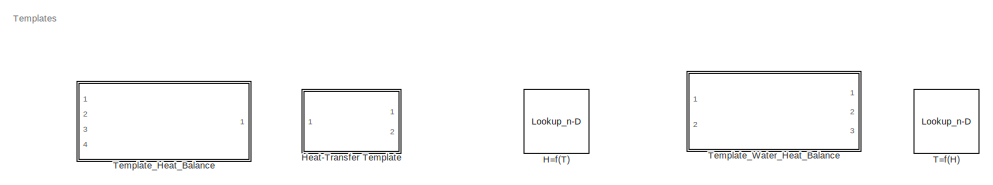
[diagram: root canvas - part 1/4, top right region]
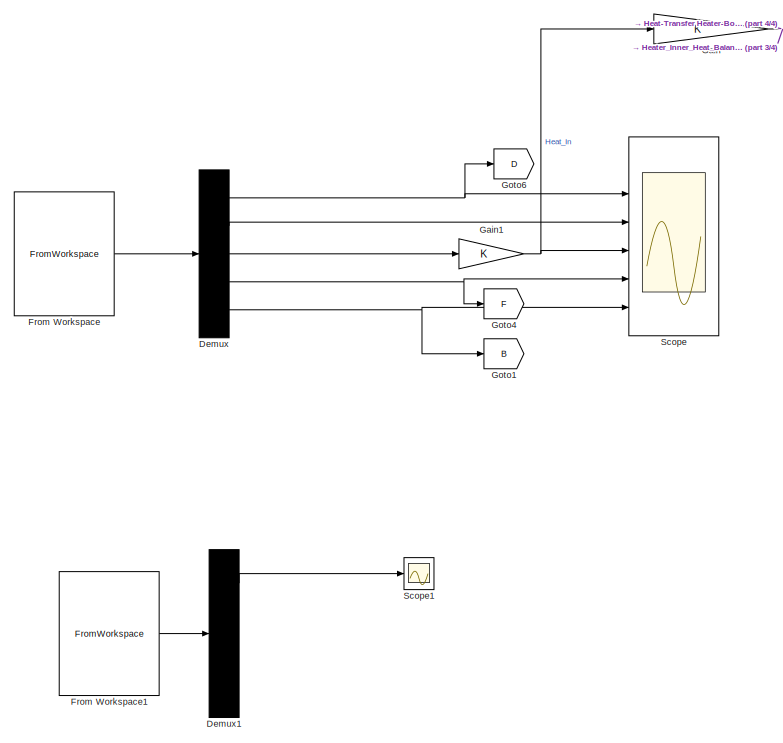
[diagram: root canvas - part 2/4, middle left region]
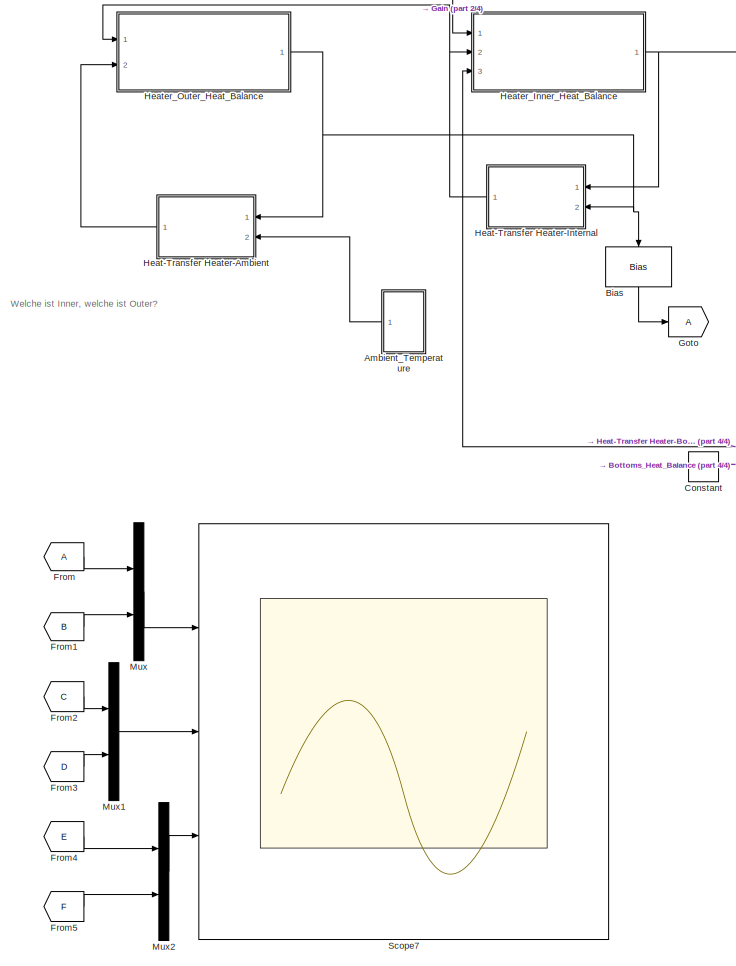
[diagram: root canvas - part 3/4, bottom center region]
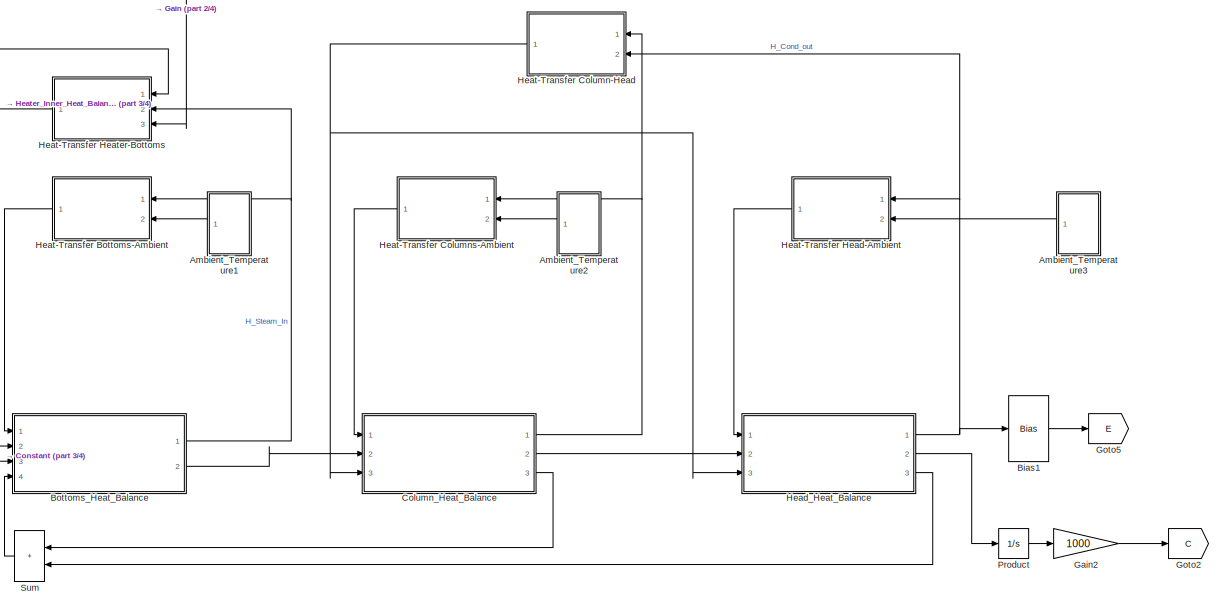
[diagram: root canvas - part 4/4, middle right region]
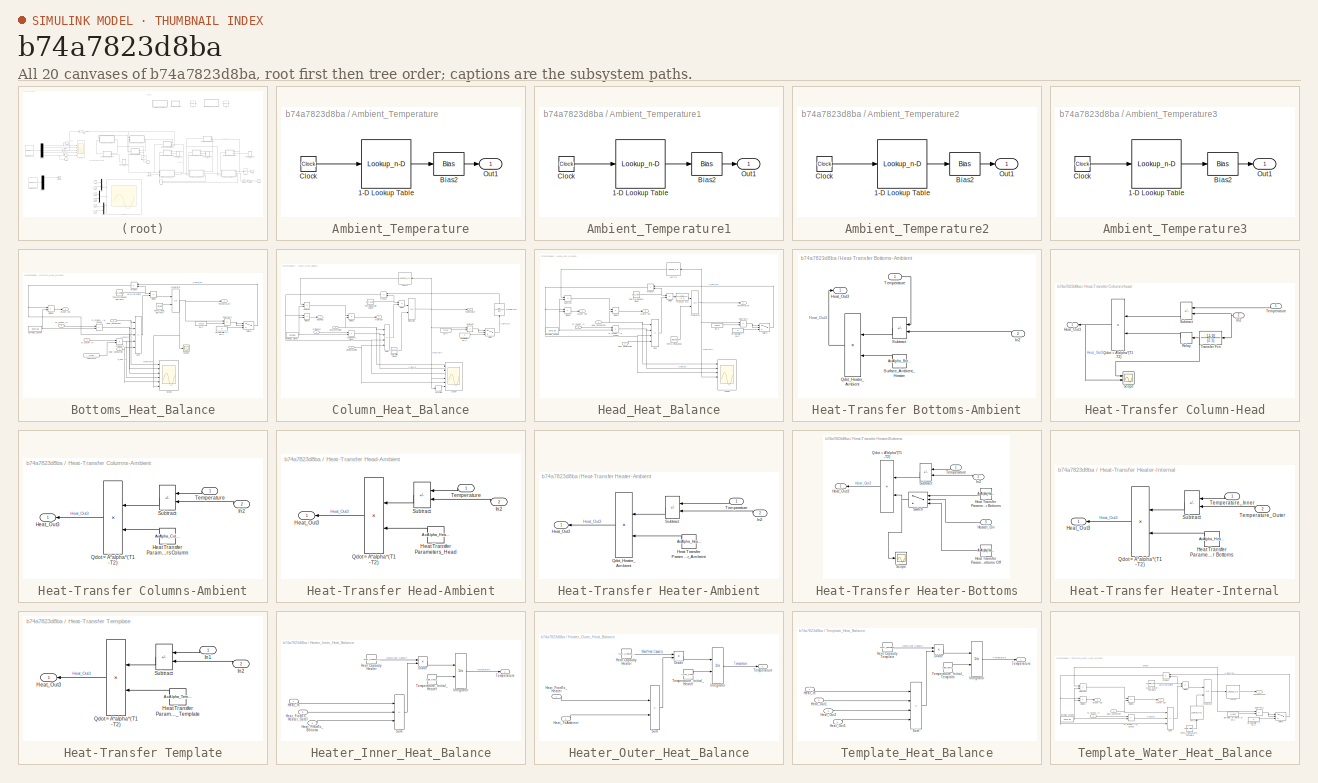
[diagram: thumbnail index - all 20 canvases of the model, root first then tree order]
MODEL slx_b74a7823d8ba
KIND model
CONFIG AbsTol = auto
CONFIG EnableMultiTasking = off
CONFIG FixedStep = 0.2
CONFIG InitFcn = %StartUp_VariableDeclaration;
CONFIG MaxStep = auto
CONFIG MinStep = auto
CONFIG RelTol = 1e-3
CONFIG SampleTimeConstraint = Unconstrained
CONFIG SolverName = FixedStepAuto
CONFIG StartTime = 0.0
CONFIG StopTime = 28600
BLOCK [SubSystem] Ambient_Temperature
  Ports = [0, 1]
  RequestExecContextInheritance = off
BLOCK [Lookup_n-D] Ambient_Temperature/1-D Lookup Table
  BreakpointsForDimension1 = [0,90*60,180*60,270*60,360*60]
  InputPortMap = u0
  InternalRulePriority = Speed
  NumberOfTableDimensions = 1
  Ports = [1, 1]
  RndMeth = Simplest
  Table = [21,23,23.5,24,24]
BLOCK [Bias] Ambient_Temperature/Bias2
  Bias = 273.15
  SaturateOnIntegerOverflow = off
BLOCK [Clock] Ambient_Temperature/Clock
BLOCK [Outport] Ambient_Temperature/Out1
BLOCK [SubSystem] Ambient_Temperature1
  Ports = [0, 1]
  RequestExecContextInheritance = off
BLOCK [Lookup_n-D] Ambient_Temperature1/1-D Lookup Table
  BreakpointsForDimension1 = [0,90*60,180*60,270*60,360*60]
  InputPortMap = u0
  InternalRulePriority = Speed
  NumberOfTableDimensions = 1
  Ports = [1, 1]
  RndMeth = Simplest
  Table = [21,23,23.5,24,24]
BLOCK [Bias] Ambient_Temperature1/Bias2
  Bias = 273.15
  SaturateOnIntegerOverflow = off
BLOCK [Clock] Ambient_Temperature1/Clock
BLOCK [Outport] Ambient_Temperature1/Out1
BLOCK [SubSystem] Ambient_Temperature2
  Ports = [0, 1]
  RequestExecContextInheritance = off
BLOCK [Lookup_n-D] Ambient_Temperature2/1-D Lookup Table
  BreakpointsForDimension1 = [0,90*60,180*60,270*60,360*60]
  InputPortMap = u0
  InternalRulePriority = Speed
  NumberOfTableDimensions = 1
  Ports = [1, 1]
  RndMeth = Simplest
  Table = [21,23,23.5,24,24]
BLOCK [Bias] Ambient_Temperature2/Bias2
  Bias = 273.15
  SaturateOnIntegerOverflow = off
BLOCK [Clock] Ambient_Temperature2/Clock
BLOCK [Outport] Ambient_Temperature2/Out1
BLOCK [SubSystem] Ambient_Temperature3
  Ports = [0, 1]
  RequestExecContextInheritance = off
BLOCK [Lookup_n-D] Ambient_Temperature3/1-D Lookup Table
  BreakpointsForDimension1 = [0,90*60,180*60,270*60,360*60]
  InputPortMap = u0
  InternalRulePriority = Speed
  NumberOfTableDimensions = 1
  Ports = [1, 1]
  RndMeth = Simplest
  Table = [21,23,23.5,24,24]
BLOCK [Bias] Ambient_Temperature3/Bias2
  Bias = 273.15
  SaturateOnIntegerOverflow = off
BLOCK [Clock] Ambient_Temperature3/Clock
BLOCK [Outport] Ambient_Temperature3/Out1
BLOCK [Bias] Bias
  Bias = -273.15
  NameLocation = left
  SaturateOnIntegerOverflow = off
BLOCK [Bias] Bias1
  Bias = -273.15
  SaturateOnIntegerOverflow = off
BLOCK [SubSystem] Bottoms_Heat_Balance
  Ports = [4, 2]
  RequestExecContextInheritance = off
BLOCK [Constant] Bottoms_Heat_Balance/ 99°C
  Value = 372.15
BLOCK [Constant] Bottoms_Heat_Balance/Constant2
  Value = 414.95
BLOCK [Product] Bottoms_Heat_Balance/Divide
  Inputs = /*
  Ports = [2, 1]
BLOCK [Product] Bottoms_Heat_Balance/Divide2
  Inputs = */
  Ports = [2, 1]
BLOCK [Constant] Bottoms_Heat_Balance/Enthalpy_Steam
  Value = 2675.58
BLOCK [Inport] Bottoms_Heat_Balance/Heat Conduction
  Port = 2
BLOCK [Inport] Bottoms_Heat_Balance/Heat_Convection
BLOCK [Integrator] Bottoms_Heat_Balance/Integrator
  InitialConditionSource = external
  Ports = [2, 1]
  UpperSaturationLimit = 100
BLOCK [Constant] Bottoms_Heat_Balance/No Boil while T < 99°C
  Value = 0
BLOCK [Product] Bottoms_Heat_Balance/Product
  Ports = [2, 1]
BLOCK [Product] Bottoms_Heat_Balance/Product2
  Ports = [2, 1]
BLOCK [Scope] Bottoms_Heat_Balance/Scope
  Floating = off
  NumInputPorts = 6
  Ports = [6]
  ScopeSpecificationString = Simulink.scopes.TimeScopeBlockCfg('CurrentConfiguration', extmgr.ConfigurationSet(extmgr.Configuration('Core','General UI',true),extmgr.Configuration('Core','Source UI',true),extmgr.Configuration('Sources','WiredSimulink',true,'DataLoggingVariableName','ScopeData3'),extmgr.Configuration('Visuals','Time Domain',true,'SerializedDisplays',{struct('MinYLimReal','-0.00881','MaxYLimReal','0.07771','YLab...<+4821ch>
BLOCK [Scope] Bottoms_Heat_Balance/Scope1
  Floating = off
  NumInputPorts = 1
  Ports = [1]
  ScopeSpecificationString = Simulink.scopes.TimeScopeBlockCfg('CurrentConfiguration', extmgr.ConfigurationSet(extmgr.Configuration('Core','General UI',true),extmgr.Configuration('Core','Source UI',true),extmgr.Configuration('Sources','WiredSimulink',true,'DataLoggingVariableName','ScopeData2'),extmgr.Configuration('Visuals','Time Domain',true,'SerializedDisplays',{struct('MinYLimReal','294.43282','MaxYLimReal','380.86496','Y...<+1418ch>
BLOCK [Outport] Bottoms_Heat_Balance/Steam Out
  Port = 2
BLOCK [Sum] Bottoms_Heat_Balance/Subtract1
  IconShape = rectangular
  Inputs = +-
  Ports = [2, 1]
BLOCK [Sum] Bottoms_Heat_Balance/Sum
  IconShape = rectangular
  Inputs = -+-++
  Ports = [5, 1]
BLOCK [Switch] Bottoms_Heat_Balance/Switch
  Criteria = u2 > Threshold
  InputSameDT = off
  SaturateOnIntegerOverflow = off
BLOCK [Constant] Bottoms_Heat_Balance/Temp_Initial_Bottoms
  Value = T_init_Bottoms
BLOCK [Outport] Bottoms_Heat_Balance/Temperature
BLOCK [Constant] Bottoms_Heat_Balance/Thermal Capacity Bottoms
  Value = MxC_Bottoms
BLOCK [Product] Bottoms_Heat_Balance/m_Steam * H_Steam
  NameLocation = top
  Ports = [2, 1]
BLOCK [Inport] Bottoms_Heat_Balance/m_Steam_In
  NameLocation = top
  Port = 3
BLOCK [Inport] Bottoms_Heat_Balance/m_Water In
  Port = 4
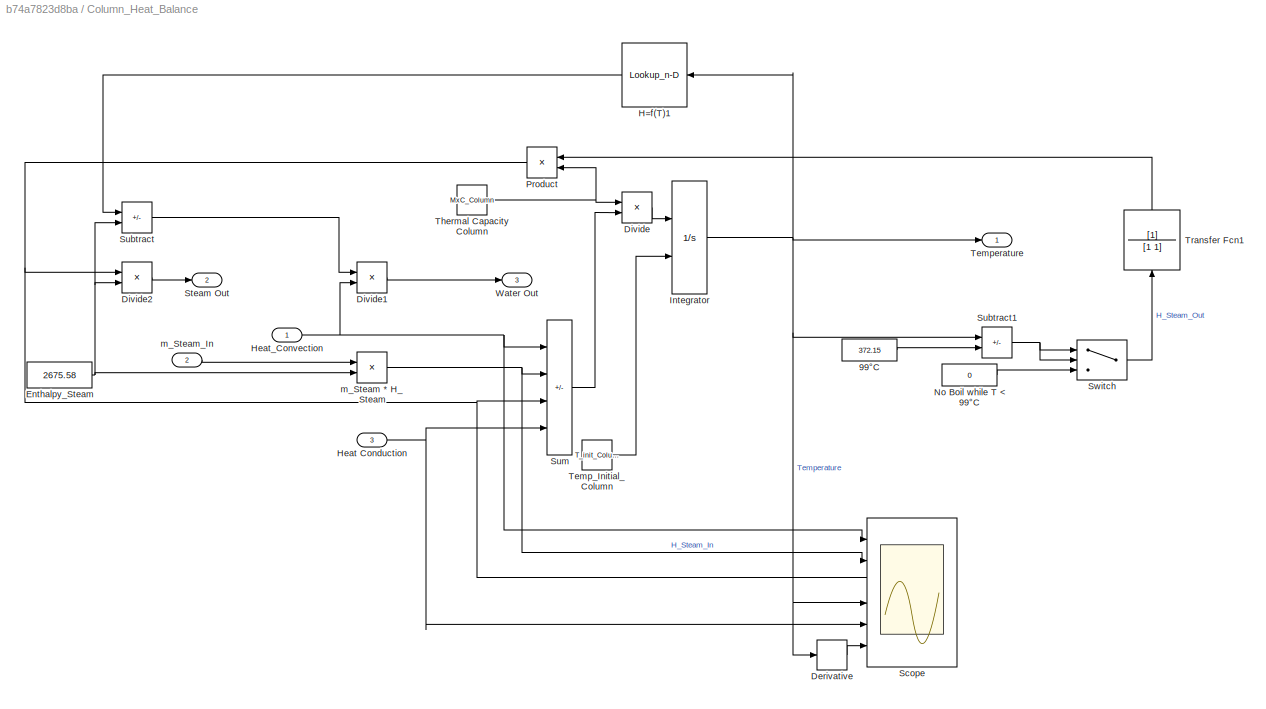
BLOCK [SubSystem] Column_Heat_Balance
  Ports = [3, 3]
  RequestExecContextInheritance = off
BLOCK [Constant] Column_Heat_Balance/ 99°C
  Value = 372.15
BLOCK [Derivative] Column_Heat_Balance/Derivative
BLOCK [Product] Column_Heat_Balance/Divide
  Inputs = /*
  Ports = [2, 1]
BLOCK [Product] Column_Heat_Balance/Divide1
  Inputs = /*
  Ports = [2, 1]
BLOCK [Product] Column_Heat_Balance/Divide2
  Inputs = */
  Ports = [2, 1]
BLOCK [Constant] Column_Heat_Balance/Enthalpy_Steam
  Value = 2675.58
BLOCK [Lookup_n-D] Column_Heat_Balance/H=f(T)1
  BreakpointsForDimension1 = [273.16, 372.15, 373.15, 446.15\n]
  InputPortMap = u0
  InternalRulePriority = Speed
  NameLocation = top
  NumberOfTableDimensions = 1
  Ports = [1, 1]
  RndMeth = Simplest
  Table = [0.10319804238124, 414.95098616583, 2675.58417423615, 2822.05078480503]
BLOCK [Inport] Column_Heat_Balance/Heat Conduction
  Port = 3
BLOCK [Inport] Column_Heat_Balance/Heat_Convection
BLOCK [Integrator] Column_Heat_Balance/Integrator
  InitialConditionSource = external
  Ports = [2, 1]
  UpperSaturationLimit = 100
BLOCK [Constant] Column_Heat_Balance/No Boil while T < 99°C
  Value = 0
BLOCK [Product] Column_Heat_Balance/Product
  Ports = [2, 1]
BLOCK [Scope] Column_Heat_Balance/Scope
  Floating = off
  NumInputPorts = 6
  Ports = [6]
  ScopeSpecificationString = Simulink.scopes.TimeScopeBlockCfg('CurrentConfiguration', extmgr.ConfigurationSet(extmgr.Configuration('Core','General UI',true),extmgr.Configuration('Core','Source UI',true),extmgr.Configuration('Sources','WiredSimulink',true,'DataLoggingVariableName','ScopeData4'),extmgr.Configuration('Visuals','Time Domain',true,'SerializedDisplays',{struct('MinYLimReal','-0.00000001','MaxYLimReal','0.00000012'...<+4825ch>
BLOCK [Outport] Column_Heat_Balance/Steam Out
  Port = 2
BLOCK [Sum] Column_Heat_Balance/Subtract
  IconShape = rectangular
  Inputs = -+
  Ports = [2, 1]
BLOCK [Sum] Column_Heat_Balance/Subtract1
  IconShape = rectangular
  Inputs = +-
  Ports = [2, 1]
BLOCK [Sum] Column_Heat_Balance/Sum
  IconShape = rectangular
  Inputs = -+--
  Ports = [4, 1]
BLOCK [Switch] Column_Heat_Balance/Switch
  Criteria = u2 > Threshold
  InputSameDT = off
  SaturateOnIntegerOverflow = off
BLOCK [Constant] Column_Heat_Balance/Temp_Initial_Column
  Value = T_init_Column
BLOCK [Outport] Column_Heat_Balance/Temperature
BLOCK [Constant] Column_Heat_Balance/Thermal Capacity Column
  Value = MxC_Column
BLOCK [TransferFcn] Column_Heat_Balance/Transfer Fcn1
  Denominator = [1 1]
  NameLocation = right
BLOCK [Outport] Column_Heat_Balance/Water Out
  Port = 3
BLOCK [Product] Column_Heat_Balance/m_Steam * H_Steam
  Ports = [2, 1]
BLOCK [Inport] Column_Heat_Balance/m_Steam_In
  NameLocation = top
  Port = 2
BLOCK [Constant] Constant
  NameLocation = top
  Value = 0
BLOCK [Demux] Demux
  Outputs = 5
  Ports = [1, 5]
BLOCK [Demux] Demux1
  Ports = [1, 4]
BLOCK [From] From
BLOCK [FromWorkspace] From Workspace
  VariableName = SimInput
BLOCK [FromWorkspace] From Workspace1
  Interpolate = off
  OutputAfterFinalValue = Holding final value
  VariableName = SimInputOpt
BLOCK [From] From1
  GotoTag = B
BLOCK [From] From2
  GotoTag = C
BLOCK [From] From3
  GotoTag = D
BLOCK [From] From4
  GotoTag = E
BLOCK [From] From5
  GotoTag = F
BLOCK [Gain] Gain
BLOCK [Gain] Gain1
BLOCK [Gain] Gain2
  Gain = 1000
BLOCK [Goto] Goto
BLOCK [Goto] Goto1
  GotoTag = B
BLOCK [Goto] Goto2
  GotoTag = C
BLOCK [Goto] Goto4
  GotoTag = F
BLOCK [Goto] Goto5
  GotoTag = E
BLOCK [Goto] Goto6
  GotoTag = D
BLOCK [Lookup_n-D] H=f(T)
  BreakpointsForDimension1 = [273.16, 372.15, 373.15, 446.15\n]
  Commented = on
  InputPortMap = u0
  InternalRulePriority = Speed
  NumberOfTableDimensions = 1
  Ports = [1, 1]
  RndMeth = Simplest
  Table = [0.10319804238124, 414.95098616583, 2675.58417423615, 2822.05078480503]
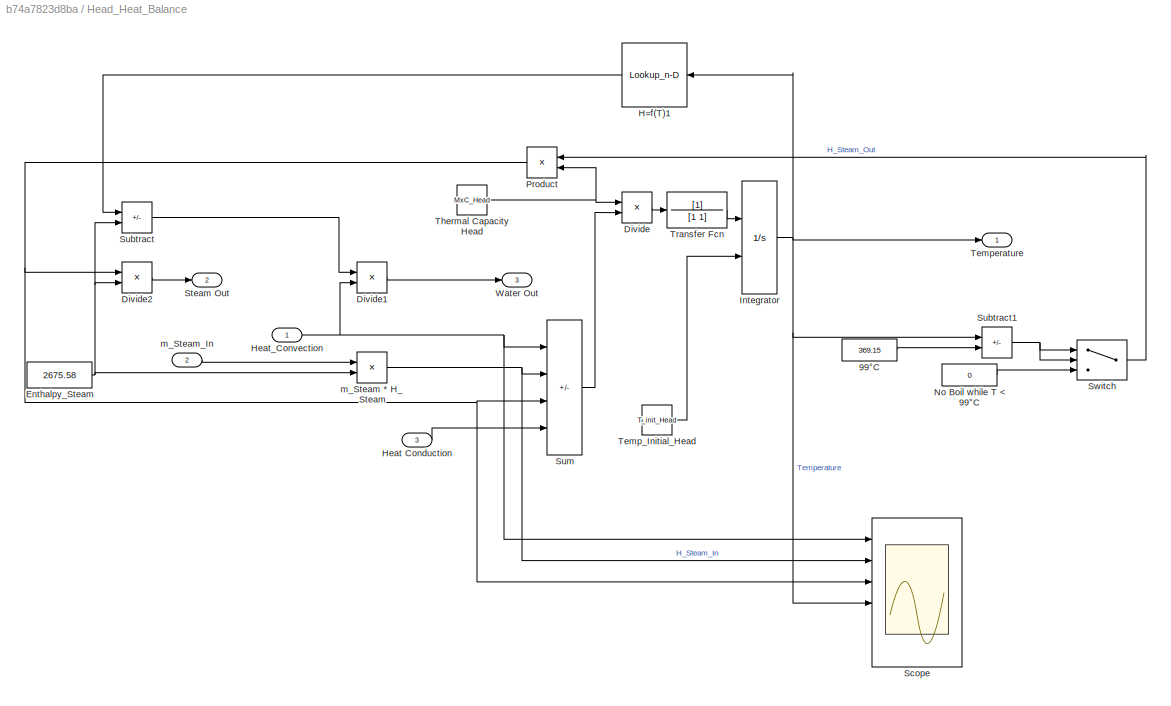
BLOCK [SubSystem] Head_Heat_Balance
  Ports = [3, 3]
  RequestExecContextInheritance = off
BLOCK [Constant] Head_Heat_Balance/ 99°C
  Value = 369.15
BLOCK [Product] Head_Heat_Balance/Divide
  Inputs = /*
  Ports = [2, 1]
BLOCK [Product] Head_Heat_Balance/Divide1
  Inputs = /*
  Ports = [2, 1]
BLOCK [Product] Head_Heat_Balance/Divide2
  Inputs = */
  Ports = [2, 1]
BLOCK [Constant] Head_Heat_Balance/Enthalpy_Steam
  Value = 2675.58
BLOCK [Lookup_n-D] Head_Heat_Balance/H=f(T)1
  BreakpointsForDimension1 = [273.16, 372.15, 373.15, 446.15\n]
  InputPortMap = u0
  InternalRulePriority = Speed
  NameLocation = top
  NumberOfTableDimensions = 1
  Ports = [1, 1]
  RndMeth = Simplest
  Table = [0.10319804238124, 414.95098616583, 2675.58417423615, 2822.05078480503]
BLOCK [Inport] Head_Heat_Balance/Heat Conduction
  Port = 3
BLOCK [Inport] Head_Heat_Balance/Heat_Convection
BLOCK [Integrator] Head_Heat_Balance/Integrator
  InitialConditionSource = external
  Ports = [2, 1]
  UpperSaturationLimit = 100
BLOCK [Constant] Head_Heat_Balance/No Boil while T < 99°C
  Value = 0
BLOCK [Product] Head_Heat_Balance/Product
  Ports = [2, 1]
BLOCK [Scope] Head_Heat_Balance/Scope
  Floating = off
  NumInputPorts = 6
  Ports = [6]
  ScopeSpecificationString = Simulink.scopes.TimeScopeBlockCfg('CurrentConfiguration', extmgr.ConfigurationSet(extmgr.Configuration('Core','General UI',true),extmgr.Configuration('Core','Source UI',true),extmgr.Configuration('Sources','WiredSimulink',true,'DataLoggingVariableName','ScopeData4'),extmgr.Configuration('Visuals','Time Domain',true,'SerializedDisplays',{struct('MinYLimReal','-0.03039','MaxYLimReal','0.27745','YLab...<+4817ch>
BLOCK [Outport] Head_Heat_Balance/Steam Out
  Port = 2
BLOCK [Sum] Head_Heat_Balance/Subtract
  IconShape = rectangular
  Inputs = -+
  Ports = [2, 1]
BLOCK [Sum] Head_Heat_Balance/Subtract1
  IconShape = rectangular
  Inputs = +-
  Ports = [2, 1]
BLOCK [Sum] Head_Heat_Balance/Sum
  IconShape = rectangular
  Inputs = -+-+
  Ports = [4, 1]
BLOCK [Switch] Head_Heat_Balance/Switch
  Criteria = u2 > Threshold
  InputSameDT = off
  SaturateOnIntegerOverflow = off
BLOCK [Constant] Head_Heat_Balance/Temp_Initial_Head
  Value = T_init_Head
BLOCK [Outport] Head_Heat_Balance/Temperature
BLOCK [Constant] Head_Heat_Balance/Thermal Capacity Head
  Value = MxC_Head
BLOCK [TransferFcn] Head_Heat_Balance/Transfer Fcn
  Denominator = [1 1]
BLOCK [Outport] Head_Heat_Balance/Water Out
  Port = 3
BLOCK [Product] Head_Heat_Balance/m_Steam * H_Steam
  Ports = [2, 1]
BLOCK [Inport] Head_Heat_Balance/m_Steam_In
  NameLocation = top
  Port = 2
BLOCK [SubSystem] Heat-Transfer Bottoms-Ambient
  Ports = [2, 1]
  RequestExecContextInheritance = off
BLOCK [Outport] Heat-Transfer Bottoms-Ambient/Heat_Out3
BLOCK [Inport] Heat-Transfer Bottoms-Ambient/In2
  Port = 2
BLOCK [Product] Heat-Transfer Bottoms-Ambient/Qdot_Heater_Ambient
  Ports = [2, 1]
BLOCK [Sum] Heat-Transfer Bottoms-Ambient/Subtract
  IconShape = rectangular
  Inputs = +-
  NameLocation = top
  Ports = [2, 1]
BLOCK [Constant] Heat-Transfer Bottoms-Ambient/Surface_Ambient_Heater
  Value = AxAlpha_Bottoms_Ambient
BLOCK [Inport] Heat-Transfer Bottoms-Ambient/Temperature
BLOCK [SubSystem] Heat-Transfer Column-Head
  Ports = [2, 1]
  RequestExecContextInheritance = off
BLOCK [Outport] Heat-Transfer Column-Head/Heat_Out3
BLOCK [Inport] Heat-Transfer Column-Head/In2
  Port = 2
BLOCK [Product] Heat-Transfer Column-Head/Qdot = A*alpha*(T1-T2)
  NameLocation = top
  Ports = [2, 1]
BLOCK [Relay] Heat-Transfer Column-Head/Relay
  OffSwitchValue = -0.005
  OnOutputValue = AxAlpha_Column_Head
  OnSwitchValue = 0.03
BLOCK [Scope] Heat-Transfer Column-Head/Scope
  Floating = off
  NumInputPorts = 2
  Ports = [2]
  ScopeSpecificationString = Simulink.scopes.TimeScopeBlockCfg('CurrentConfiguration', extmgr.ConfigurationSet(extmgr.Configuration('Core','General UI',true),extmgr.Configuration('Core','Source UI',true),extmgr.Configuration('Sources','WiredSimulink',true,'DataLoggingVariableName','ScopeData1'),extmgr.Configuration('Visuals','Time Domain',true,'SerializedDisplays',{struct('MinYLimReal','-0.27968','MaxYLimReal','0.18048','YLab...<+1439ch>
BLOCK [Sum] Heat-Transfer Column-Head/Subtract
  IconShape = rectangular
  Inputs = +-
  NameLocation = top
  Ports = [2, 1]
BLOCK [Inport] Heat-Transfer Column-Head/Temperature
BLOCK [TransferFcn] Heat-Transfer Column-Head/Transfer Fcn
  Denominator = [2 1]
  Numerator = [-1 0]
BLOCK [SubSystem] Heat-Transfer Columns-Ambient
  Ports = [2, 1]
  RequestExecContextInheritance = off
BLOCK [Constant] Heat-Transfer Columns-Ambient/Heat Transfer Parameters Column
  Value = AxAlpha_Column_Ambient
BLOCK [Outport] Heat-Transfer Columns-Ambient/Heat_Out3
BLOCK [Inport] Heat-Transfer Columns-Ambient/In2
  Port = 2
BLOCK [Product] Heat-Transfer Columns-Ambient/Qdot = A*alpha*(T1-T2)
  NameLocation = top
  Ports = [2, 1]
BLOCK [Sum] Heat-Transfer Columns-Ambient/Subtract
  IconShape = rectangular
  Inputs = +-
  NameLocation = top
  Ports = [2, 1]
BLOCK [Inport] Heat-Transfer Columns-Ambient/Temperature
BLOCK [SubSystem] Heat-Transfer Head-Ambient
  Ports = [2, 1]
  RequestExecContextInheritance = off
BLOCK [Constant] Heat-Transfer Head-Ambient/Heat Transfer Parameters_Head
  Value = AxAlpha_Head_Ambient
BLOCK [Outport] Heat-Transfer Head-Ambient/Heat_Out3
BLOCK [Inport] Heat-Transfer Head-Ambient/In2
  Port = 2
BLOCK [Product] Heat-Transfer Head-Ambient/Qdot = A*alpha*(T1-T2)
  NameLocation = top
  Ports = [2, 1]
BLOCK [Sum] Heat-Transfer Head-Ambient/Subtract
  IconShape = rectangular
  Inputs = +-
  NameLocation = top
  Ports = [2, 1]
BLOCK [Inport] Heat-Transfer Head-Ambient/Temperature
BLOCK [SubSystem] Heat-Transfer Heater-Ambient
  Ports = [2, 1]
  RequestExecContextInheritance = off
BLOCK [Constant] Heat-Transfer Heater-Ambient/Heat Transfer Parameters Heater_Ambeint
  Value = AxAlpha_Heater_Ambient
BLOCK [Outport] Heat-Transfer Heater-Ambient/Heat_Out3
BLOCK [Inport] Heat-Transfer Heater-Ambient/In2
  Port = 2
BLOCK [Product] Heat-Transfer Heater-Ambient/Qdot_Heater_Ambient
  Ports = [2, 1]
BLOCK [Sum] Heat-Transfer Heater-Ambient/Subtract
  IconShape = rectangular
  Inputs = +-
  NameLocation = top
  Ports = [2, 1]
BLOCK [Inport] Heat-Transfer Heater-Ambient/Temperature
BLOCK [SubSystem] Heat-Transfer Heater-Bottoms
  Ports = [3, 1]
  RequestExecContextInheritance = off
BLOCK [Constant] Heat-Transfer Heater-Bottoms/Heat Transfer Parameters Heater Bottoms
  Value = AxAlpha_Heater_Bottoms_On
BLOCK [Constant] Heat-Transfer Heater-Bottoms/Heat Transfer Parameters Heater Bottoms Off
  Value = AxAlpha_Heater_Bottoms_Off
BLOCK [Outport] Heat-Transfer Heater-Bottoms/Heat_Out3
BLOCK [Inport] Heat-Transfer Heater-Bottoms/Heater_On
  Port = 3
BLOCK [Inport] Heat-Transfer Heater-Bottoms/In2
  Port = 2
BLOCK [Product] Heat-Transfer Heater-Bottoms/Qdot = A*alpha*(T1-T2)
  NameLocation = top
  Ports = [2, 1]
BLOCK [Scope] Heat-Transfer Heater-Bottoms/Scope
  Floating = off
  NumInputPorts = 1
  Ports = [1]
  ScopeSpecificationString = Simulink.scopes.TimeScopeBlockCfg('CurrentConfiguration', extmgr.ConfigurationSet(extmgr.Configuration('Core','General UI',true),extmgr.Configuration('Core','Source UI',true),extmgr.Configuration('Sources','WiredSimulink',true,'DataLoggingVariableName','ScopeData1'),extmgr.Configuration('Visuals','Time Domain',true,'SerializedDisplays',{struct('MinYLimReal','0.00083','MaxYLimReal','0.00252','YLabe...<+1429ch>
BLOCK [Sum] Heat-Transfer Heater-Bottoms/Subtract
  IconShape = rectangular
  Inputs = +-
  NameLocation = top
  Ports = [2, 1]
BLOCK [Switch] Heat-Transfer Heater-Bottoms/Switch
  Criteria = u2 > Threshold
  InputSameDT = off
  SaturateOnIntegerOverflow = off
BLOCK [Inport] Heat-Transfer Heater-Bottoms/Temperature
BLOCK [SubSystem] Heat-Transfer Heater-Internal
  Ports = [2, 1]
  RequestExecContextInheritance = off
BLOCK [Constant] Heat-Transfer Heater-Internal/Heat Transfer Parameters Heater Bottoms
  Value = AxAlpha_Heater_Inner_Outer
BLOCK [Outport] Heat-Transfer Heater-Internal/Heat_Out3
BLOCK [Product] Heat-Transfer Heater-Internal/Qdot = A*alpha*(T1-T2)
  NameLocation = top
  Ports = [2, 1]
BLOCK [Sum] Heat-Transfer Heater-Internal/Subtract
  IconShape = rectangular
  Inputs = +-
  NameLocation = top
  Ports = [2, 1]
BLOCK [Inport] Heat-Transfer Heater-Internal/Temperature_Inner
BLOCK [Inport] Heat-Transfer Heater-Internal/Temperature_Outer
  Port = 2
BLOCK [SubSystem] Heat-Transfer Template
  Commented = on
  Ports = [2, 1]
  RequestExecContextInheritance = off
BLOCK [Constant] Heat-Transfer Template/Heat Transfer Parameters_Template
  Value = AxAlpha_Template
BLOCK [Outport] Heat-Transfer Template/Heat_Out3
BLOCK [Inport] Heat-Transfer Template/In1
BLOCK [Inport] Heat-Transfer Template/In2
  Port = 2
BLOCK [Product] Heat-Transfer Template/Qdot = A*alpha*(T1-T2)
  NameLocation = top
  Ports = [2, 1]
BLOCK [Sum] Heat-Transfer Template/Subtract
  IconShape = rectangular
  Inputs = +-
  NameLocation = top
  Ports = [2, 1]
BLOCK [SubSystem] Heater_Inner_Heat_Balance
  Ports = [3, 1]
  RequestExecContextInheritance = off
BLOCK [Product] Heater_Inner_Heat_Balance/Divide
  Inputs = /*
  Ports = [2, 1]
BLOCK [Constant] Heater_Inner_Heat_Balance/Heat Capacity Heater
  Value = MxC_Heater_Inner
BLOCK [Inport] Heater_Inner_Heat_Balance/Heat_FromTo_Bottoms
  Port = 3
BLOCK [Inport] Heater_Inner_Heat_Balance/Heat_FromTo_Heater_Outer
  Port = 2
BLOCK [Inport] Heater_Inner_Heat_Balance/Heat_In
BLOCK [Integrator] Heater_Inner_Heat_Balance/Integrator
  InitialConditionSource = external
  Ports = [2, 1]
BLOCK [Sum] Heater_Inner_Heat_Balance/Sum
  IconShape = rectangular
  Inputs = +--
  Ports = [3, 1]
BLOCK [Outport] Heater_Inner_Heat_Balance/Temperature
BLOCK [Constant] Heater_Inner_Heat_Balance/Temperature_Initial_Heater
  Value = T_init_Heater
BLOCK [SubSystem] Heater_Outer_Heat_Balance
  Ports = [2, 1]
  RequestExecContextInheritance = off
BLOCK [Product] Heater_Outer_Heat_Balance/Divide
  Inputs = /*
  Ports = [2, 1]
BLOCK [Constant] Heater_Outer_Heat_Balance/Heat Capacity Heater
  Value = MxC_Heater_Outer
BLOCK [Inport] Heater_Outer_Heat_Balance/Heat_FromTo_Heater
BLOCK [Inport] Heater_Outer_Heat_Balance/Heat_ToAmbient
  Port = 2
BLOCK [Integrator] Heater_Outer_Heat_Balance/Integrator
  InitialConditionSource = external
  Ports = [2, 1]
BLOCK [Sum] Heater_Outer_Heat_Balance/Sum
  IconShape = rectangular
  Inputs = +-
  Ports = [2, 1]
BLOCK [Outport] Heater_Outer_Heat_Balance/Temperature
BLOCK [Constant] Heater_Outer_Heat_Balance/Temperature_Initial_Heater
  Value = T_init_Heater
BLOCK [Mux] Mux
  DisplayOption = bar
  Inputs = 2
  Ports = [2, 1]
BLOCK [Mux] Mux1
  DisplayOption = bar
  Inputs = 2
  Ports = [2, 1]
BLOCK [Mux] Mux2
  DisplayOption = bar
  Inputs = 2
  Ports = [2, 1]
BLOCK [Integrator] Product
  Ports = [1, 1]
BLOCK [Scope] Scope
  Floating = off
  NumInputPorts = 6
  Ports = [6]
  ScopeSpecificationString = Simulink.scopes.TimeScopeBlockCfg('CurrentConfiguration', extmgr.ConfigurationSet(extmgr.Configuration('Core','General UI',true),extmgr.Configuration('Core','Source UI',true),extmgr.Configuration('Sources','WiredSimulink',true,'DataLoggingVariableName','ScopeData1'),extmgr.Configuration('Visuals','Time Domain',true,'SerializedDisplays',{struct('MinYLimReal','-0.05345','MaxYLimReal','0.48104','YLab...<+4981ch>
BLOCK [Scope] Scope1
  Floating = off
  NumInputPorts = 1
  Ports = [1]
  ScopeSpecificationString = Simulink.scopes.TimeScopeBlockCfg('CurrentConfiguration', extmgr.ConfigurationSet(extmgr.Configuration('Core','General UI',true),extmgr.Configuration('Core','Source UI',true),extmgr.Configuration('Sources','WiredSimulink',true,'DataLoggingVariableName','OptTrainingDataPower','DataLogging',true),extmgr.Configuration('Visuals','Time Domain',true,'SerializedDisplays',{struct('MinYLimReal','-0.04562',...<+1396ch>
BLOCK [Scope] Scope7
  Floating = off
  NumInputPorts = 3
  Ports = [3]
  ScopeSpecificationString = Simulink.scopes.TimeScopeBlockCfg('CurrentConfiguration', extmgr.ConfigurationSet(extmgr.Configuration('Core','General UI',true),extmgr.Configuration('Core','Source UI',true),extmgr.Configuration('Sources','WiredSimulink',true,'DataLoggingVariableName','OptTrainingData','DataLogging',true),extmgr.Configuration('Visuals','Time Domain',true,'SerializedDisplays',{struct('MinYLimReal','37.51766','MaxY...<+3262ch>
BLOCK [Sum] Sum
  IconShape = rectangular
  Ports = [2, 1]
BLOCK [Lookup_n-D] T=f(H)
  BreakpointsForDimension1 = [0.10319804238124, 414.95098616583, 2675.58417423615, 2822.05078480503]
  Commented = on
  InputPortMap = u0
  InternalRulePriority = Speed
  NumberOfTableDimensions = 1
  Ports = [1, 1]
  RndMeth = Simplest
  Table = [273.16, 372.15, 373.15, 446.15]
BLOCK [SubSystem] Template_Heat_Balance
  Commented = on
  Ports = [4, 1]
  RequestExecContextInheritance = off
BLOCK [Product] Template_Heat_Balance/Divide
  Inputs = /*
  Ports = [2, 1]
BLOCK [Constant] Template_Heat_Balance/Heat Capacity Template
  Value = MxC_Template
BLOCK [Inport] Template_Heat_Balance/Heat_In
BLOCK [Inport] Template_Heat_Balance/Heat_Out1
  Port = 2
BLOCK [Inport] Template_Heat_Balance/Heat_Out2
  Port = 3
BLOCK [Inport] Template_Heat_Balance/Heat_Out3
  Port = 4
BLOCK [Integrator] Template_Heat_Balance/Integrator
  InitialConditionSource = external
  Ports = [2, 1]
BLOCK [Sum] Template_Heat_Balance/Sum
  IconShape = rectangular
  Inputs = +---
  Ports = [4, 1]
BLOCK [Outport] Template_Heat_Balance/Temperature
BLOCK [Constant] Template_Heat_Balance/Temperature_Initial_Template
  Value = T_init_Template
BLOCK [SubSystem] Template_Water_Heat_Balance
  Commented = on
  Ports = [2, 3]
  RequestExecContextInheritance = off
BLOCK [Product] Template_Water_Heat_Balance/Divide
  Inputs = /*
  Ports = [2, 1]
BLOCK [Product] Template_Water_Heat_Balance/Divide1
  Inputs = /*
  Ports = [2, 1]
BLOCK [Product] Template_Water_Heat_Balance/Divide2
  Inputs = */
  Ports = [2, 1]
BLOCK [Constant] Template_Water_Heat_Balance/Enthalpy of water at 99°C
  Value = 414.951
BLOCK [Constant] Template_Water_Heat_Balance/Enthalpy_Steam
  Value = 2675.58
BLOCK [Lookup_n-D] Template_Water_Heat_Balance/H=f(T)
  BreakpointsForDimension1 = [273.16, 372.15, 373.15, 446.15\n]
  InputPortMap = u0
  InternalRulePriority = Speed
  NameLocation = right
  NumberOfTableDimensions = 1
  Ports = [1, 1]
  RndMeth = Simplest
  Table = [0.10319804238124, 414.95098616583, 2675.58417423615, 2822.05078480503]
BLOCK [Inport] Template_Water_Heat_Balance/Heat_Convection
BLOCK [Integrator] Template_Water_Heat_Balance/Integrator
  InitialConditionSource = external
  Ports = [2, 1]
  UpperSaturationLimit = 100
BLOCK [Constant] Template_Water_Heat_Balance/Mass Water Template
  Value = M_Water_Template
BLOCK [Constant] Template_Water_Heat_Balance/No Boil while T < 99°C
  Value = 0
BLOCK [Product] Template_Water_Heat_Balance/Product
  Ports = [2, 1]
BLOCK [Outport] Template_Water_Heat_Balance/Steam Out
  Port = 2
BLOCK [Sum] Template_Water_Heat_Balance/Subtract
  IconShape = rectangular
  Inputs = -+
  Ports = [2, 1]
BLOCK [Sum] Template_Water_Heat_Balance/Subtract1
  IconShape = rectangular
  Inputs = +-
  Ports = [2, 1]
BLOCK [Sum] Template_Water_Heat_Balance/Sum
  IconShape = rectangular
  Inputs = ++-
  Ports = [3, 1]
BLOCK [Switch] Template_Water_Heat_Balance/Switch
  Criteria = u2 > Threshold
  InputSameDT = off
  SaturateOnIntegerOverflow = off
BLOCK [Lookup_n-D] Template_Water_Heat_Balance/T=f(H)
  BreakpointsForDimension1 = [0.10319804238124, 414.95098616583, 2675.58417423615, 2822.05078480503]
  InputPortMap = u0
  InternalRulePriority = Speed
  NumberOfTableDimensions = 1
  Ports = [1, 1]
  RndMeth = Simplest
  Table = [273.16, 372.15, 373.15, 446.15]
BLOCK [Constant] Template_Water_Heat_Balance/Temp_Initial_Water_Template
  Value = Temp_Water_Initial_Template
BLOCK [Outport] Template_Water_Heat_Balance/Temperature
BLOCK [Outport] Template_Water_Heat_Balance/Water Out
  Port = 3
BLOCK [Product] Template_Water_Heat_Balance/m_Steam * H_Steam
  Ports = [2, 1]
BLOCK [Inport] Template_Water_Heat_Balance/m_Steam_In
  NameLocation = top
  Port = 2
ANNOTATION (root): Templates
ANNOTATION (root): Welche ist Inner, welche ist Outer?
LINE Ambient_Temperature/1-D Lookup Table:1 -> Ambient_Temperature/Bias2:1
LINE Ambient_Temperature/Bias2:1 -> Ambient_Temperature/Out1:1
LINE Ambient_Temperature/Clock:1 -> Ambient_Temperature/1-D Lookup Table:1
LINE Ambient_Temperature1/1-D Lookup Table:1 -> Ambient_Temperature1/Bias2:1
LINE Ambient_Temperature1/Bias2:1 -> Ambient_Temperature1/Out1:1
LINE Ambient_Temperature1/Clock:1 -> Ambient_Temperature1/1-D Lookup Table:1
LINE Ambient_Temperature1:1 -> Heat-Transfer Bottoms-Ambient:2
LINE Ambient_Temperature2/1-D Lookup Table:1 -> Ambient_Temperature2/Bias2:1
LINE Ambient_Temperature2/Bias2:1 -> Ambient_Temperature2/Out1:1
LINE Ambient_Temperature2/Clock:1 -> Ambient_Temperature2/1-D Lookup Table:1
LINE Ambient_Temperature2:1 -> Heat-Transfer Columns-Ambient:2
LINE Ambient_Temperature3/1-D Lookup Table:1 -> Ambient_Temperature3/Bias2:1
LINE Ambient_Temperature3/Bias2:1 -> Ambient_Temperature3/Out1:1
LINE Ambient_Temperature3/Clock:1 -> Ambient_Temperature3/1-D Lookup Table:1
LINE Ambient_Temperature3:1 -> Heat-Transfer Head-Ambient:2
LINE Ambient_Temperature:1 -> Heat-Transfer Heater-Ambient:2
LINE Bias1:1 -> Goto5:1
LINE Bias:1 -> Goto:1
LINE Bottoms_Heat_Balance/ 99°C:1 -> Bottoms_Heat_Balance/Subtract1:2
LINE Bottoms_Heat_Balance/Constant2:1 -> Bottoms_Heat_Balance/Product2:2
LINE Bottoms_Heat_Balance/Divide2:1 -> Bottoms_Heat_Balance/Steam Out:1
LINE Bottoms_Heat_Balance/Divide:1 -> Bottoms_Heat_Balance/Integrator:1
NET Bottoms_Heat_Balance/Enthalpy_Steam:1 -> Bottoms_Heat_Balance/Divide2:2, Bottoms_Heat_Balance/m_Steam * H_Steam:2
NET Bottoms_Heat_Balance/Heat Conduction:1 -> Bottoms_Heat_Balance/Scope:5, Bottoms_Heat_Balance/Sum:5
NET Bottoms_Heat_Balance/Heat_Convection:1 -> Bottoms_Heat_Balance/Scope:1, Bottoms_Heat_Balance/Sum:1
NET Bottoms_Heat_Balance/Integrator:1 -> Bottoms_Heat_Balance/Scope1:1, Bottoms_Heat_Balance/Scope:6, Bottoms_Heat_Balance/Subtract1:1, Bottoms_Heat_Balance/Temperature:1
LINE Bottoms_Heat_Balance/No Boil while T < 99°C:1 -> Bottoms_Heat_Balance/Switch:3
NET Bottoms_Heat_Balance/Product2:1 -> Bottoms_Heat_Balance/Scope:4, Bottoms_Heat_Balance/Sum:4
NET Bottoms_Heat_Balance/Product:1 -> Bottoms_Heat_Balance/Divide2:1, Bottoms_Heat_Balance/Scope:3, Bottoms_Heat_Balance/Sum:3
NET Bottoms_Heat_Balance/Subtract1:1 -> Bottoms_Heat_Balance/Switch:1, Bottoms_Heat_Balance/Switch:2
LINE Bottoms_Heat_Balance/Sum:1 -> Bottoms_Heat_Balance/Divide:2
LINE Bottoms_Heat_Balance/Switch:1 -> Bottoms_Heat_Balance/Product:1
LINE Bottoms_Heat_Balance/Temp_Initial_Bottoms:1 -> Bottoms_Heat_Balance/Integrator:2
NET Bottoms_Heat_Balance/Thermal Capacity Bottoms:1 -> Bottoms_Heat_Balance/Divide:1, Bottoms_Heat_Balance/Product:2
NET Bottoms_Heat_Balance/m_Steam * H_Steam:1 -> Bottoms_Heat_Balance/Scope:2, Bottoms_Heat_Balance/Sum:2
LINE Bottoms_Heat_Balance/m_Steam_In:1 -> Bottoms_Heat_Balance/m_Steam * H_Steam:1
LINE Bottoms_Heat_Balance/m_Water In:1 -> Bottoms_Heat_Balance/Product2:1
NET Bottoms_Heat_Balance:1 -> Heat-Transfer Bottoms-Ambient:1, Heat-Transfer Heater-Bottoms:2
LINE Bottoms_Heat_Balance:2 -> Column_Heat_Balance:2
LINE Column_Heat_Balance/ 99°C:1 -> Column_Heat_Balance/Subtract1:2
LINE Column_Heat_Balance/Derivative:1 -> Column_Heat_Balance/Scope:6
LINE Column_Heat_Balance/Divide1:1 -> Column_Heat_Balance/Water Out:1
LINE Column_Heat_Balance/Divide2:1 -> Column_Heat_Balance/Steam Out:1
LINE Column_Heat_Balance/Divide:1 -> Column_Heat_Balance/Integrator:1
NET Column_Heat_Balance/Enthalpy_Steam:1 -> Column_Heat_Balance/Divide2:2, Column_Heat_Balance/Subtract:2, Column_Heat_Balance/m_Steam * H_Steam:2
LINE Column_Heat_Balance/H=f(T)1:1 -> Column_Heat_Balance/Subtract:1
NET Column_Heat_Balance/Heat Conduction:1 -> Column_Heat_Balance/Scope:5, Column_Heat_Balance/Sum:4
NET Column_Heat_Balance/Heat_Convection:1 -> Column_Heat_Balance/Divide1:2, Column_Heat_Balance/Scope:1, Column_Heat_Balance/Sum:1
NET Column_Heat_Balance/Integrator:1 -> Column_Heat_Balance/Derivative:1, Column_Heat_Balance/H=f(T)1:1, Column_Heat_Balance/Scope:4, Column_Heat_Balance/Subtract1:1, Column_Heat_Balance/Temperature:1
LINE Column_Heat_Balance/No Boil while T < 99°C:1 -> Column_Heat_Balance/Switch:3
NET Column_Heat_Balance/Product:1 -> Column_Heat_Balance/Divide2:1, Column_Heat_Balance/Scope:3, Column_Heat_Balance/Sum:3
NET Column_Heat_Balance/Subtract1:1 -> Column_Heat_Balance/Switch:1, Column_Heat_Balance/Switch:2
LINE Column_Heat_Balance/Subtract:1 -> Column_Heat_Balance/Divide1:1
LINE Column_Heat_Balance/Sum:1 -> Column_Heat_Balance/Divide:2
LINE Column_Heat_Balance/Switch:1 -> Column_Heat_Balance/Transfer Fcn1:1
LINE Column_Heat_Balance/Temp_Initial_Column:1 -> Column_Heat_Balance/Integrator:2
NET Column_Heat_Balance/Thermal Capacity Column:1 -> Column_Heat_Balance/Divide:1, Column_Heat_Balance/Product:2
LINE Column_Heat_Balance/Transfer Fcn1:1 -> Column_Heat_Balance/Product:1
NET Column_Heat_Balance/m_Steam * H_Steam:1 -> Column_Heat_Balance/Scope:2, Column_Heat_Balance/Sum:2
LINE Column_Heat_Balance/m_Steam_In:1 -> Column_Heat_Balance/m_Steam * H_Steam:1
NET Column_Heat_Balance:1 -> Heat-Transfer Column-Head:1, Heat-Transfer Columns-Ambient:1
LINE Column_Heat_Balance:2 -> Head_Heat_Balance:2
LINE Column_Heat_Balance:3 -> Sum:1
LINE Constant:1 -> Bottoms_Heat_Balance:3
LINE Demux1:1 -> Scope1:1
NET Demux:1 -> Goto6:1, Scope:2
LINE Demux:2 -> Scope:3
LINE Demux:3 -> Gain1:1
NET Demux:4 -> Goto4:1, Scope:5
NET Demux:5 -> Goto1:1, Scope:6
LINE From Workspace1:1 -> Demux1:1
LINE From Workspace:1 -> Demux:1
LINE From1:1 -> Mux:2
LINE From2:1 -> Mux1:1
LINE From3:1 -> Mux1:2
LINE From4:1 -> Mux2:1
LINE From5:1 -> Mux2:2
LINE From:1 -> Mux:1
NET Gain1:1 -> Gain:1, Scope:4
LINE Gain2:1 -> Goto2:1
NET Gain:1 -> Heat-Transfer Heater-Bottoms:3, Heater_Inner_Heat_Balance:1
LINE Head_Heat_Balance/ 99°C:1 -> Head_Heat_Balance/Subtract1:2
LINE Head_Heat_Balance/Divide1:1 -> Head_Heat_Balance/Water Out:1
LINE Head_Heat_Balance/Divide2:1 -> Head_Heat_Balance/Steam Out:1
LINE Head_Heat_Balance/Divide:1 -> Head_Heat_Balance/Transfer Fcn:1
NET Head_Heat_Balance/Enthalpy_Steam:1 -> Head_Heat_Balance/Divide2:2, Head_Heat_Balance/Subtract:2, Head_Heat_Balance/m_Steam * H_Steam:2
LINE Head_Heat_Balance/H=f(T)1:1 -> Head_Heat_Balance/Subtract:1
LINE Head_Heat_Balance/Heat Conduction:1 -> Head_Heat_Balance/Sum:4
NET Head_Heat_Balance/Heat_Convection:1 -> Head_Heat_Balance/Divide1:2, Head_Heat_Balance/Scope:1, Head_Heat_Balance/Sum:1
NET Head_Heat_Balance/Integrator:1 -> Head_Heat_Balance/H=f(T)1:1, Head_Heat_Balance/Scope:4, Head_Heat_Balance/Subtract1:1, Head_Heat_Balance/Temperature:1
LINE Head_Heat_Balance/No Boil while T < 99°C:1 -> Head_Heat_Balance/Switch:3
NET Head_Heat_Balance/Product:1 -> Head_Heat_Balance/Divide2:1, Head_Heat_Balance/Scope:3, Head_Heat_Balance/Sum:3
NET Head_Heat_Balance/Subtract1:1 -> Head_Heat_Balance/Switch:1, Head_Heat_Balance/Switch:2
LINE Head_Heat_Balance/Subtract:1 -> Head_Heat_Balance/Divide1:1
LINE Head_Heat_Balance/Sum:1 -> Head_Heat_Balance/Divide:2
LINE Head_Heat_Balance/Switch:1 -> Head_Heat_Balance/Product:1
LINE Head_Heat_Balance/Temp_Initial_Head:1 -> Head_Heat_Balance/Integrator:2
NET Head_Heat_Balance/Thermal Capacity Head:1 -> Head_Heat_Balance/Divide:1, Head_Heat_Balance/Product:2
LINE Head_Heat_Balance/Transfer Fcn:1 -> Head_Heat_Balance/Integrator:1
NET Head_Heat_Balance/m_Steam * H_Steam:1 -> Head_Heat_Balance/Scope:2, Head_Heat_Balance/Sum:2
LINE Head_Heat_Balance/m_Steam_In:1 -> Head_Heat_Balance/m_Steam * H_Steam:1
NET Head_Heat_Balance:1 -> Bias1:1, Heat-Transfer Column-Head:2, Heat-Transfer Head-Ambient:1
LINE Head_Heat_Balance:2 -> Product:1
LINE Head_Heat_Balance:3 -> Sum:2
LINE Heat-Transfer Bottoms-Ambient/In2:1 -> Heat-Transfer Bottoms-Ambient/Subtract:2
LINE Heat-Transfer Bottoms-Ambient/Qdot_Heater_Ambient:1 -> Heat-Transfer Bottoms-Ambient/Heat_Out3:1
LINE Heat-Transfer Bottoms-Ambient/Subtract:1 -> Heat-Transfer Bottoms-Ambient/Qdot_Heater_Ambient:1
LINE Heat-Transfer Bottoms-Ambient/Surface_Ambient_Heater:1 -> Heat-Transfer Bottoms-Ambient/Qdot_Heater_Ambient:2
LINE Heat-Transfer Bottoms-Ambient/Temperature:1 -> Heat-Transfer Bottoms-Ambient/Subtract:1
LINE Heat-Transfer Bottoms-Ambient:1 -> Bottoms_Heat_Balance:1
NET Heat-Transfer Column-Head/In2:1 -> Heat-Transfer Column-Head/Subtract:2, Heat-Transfer Column-Head/Transfer Fcn:1
NET Heat-Transfer Column-Head/Qdot = A*alpha*(T1-T2):1 -> Heat-Transfer Column-Head/Heat_Out3:1, Heat-Transfer Column-Head/Scope:2
LINE Heat-Transfer Column-Head/Relay:1 -> Heat-Transfer Column-Head/Qdot = A*alpha*(T1-T2):2
LINE Heat-Transfer Column-Head/Subtract:1 -> Heat-Transfer Column-Head/Qdot = A*alpha*(T1-T2):1
LINE Heat-Transfer Column-Head/Temperature:1 -> Heat-Transfer Column-Head/Subtract:1
NET Heat-Transfer Column-Head/Transfer Fcn:1 -> Heat-Transfer Column-Head/Relay:1, Heat-Transfer Column-Head/Scope:1
NET Heat-Transfer Column-Head:1 -> Column_Heat_Balance:3, Head_Heat_Balance:3
LINE Heat-Transfer Columns-Ambient/Heat Transfer Parameters Column:1 -> Heat-Transfer Columns-Ambient/Qdot = A*alpha*(T1-T2):2
LINE Heat-Transfer Columns-Ambient/In2:1 -> Heat-Transfer Columns-Ambient/Subtract:2
LINE Heat-Transfer Columns-Ambient/Qdot = A*alpha*(T1-T2):1 -> Heat-Transfer Columns-Ambient/Heat_Out3:1
LINE Heat-Transfer Columns-Ambient/Subtract:1 -> Heat-Transfer Columns-Ambient/Qdot = A*alpha*(T1-T2):1
LINE Heat-Transfer Columns-Ambient/Temperature:1 -> Heat-Transfer Columns-Ambient/Subtract:1
LINE Heat-Transfer Columns-Ambient:1 -> Column_Heat_Balance:1
LINE Heat-Transfer Head-Ambient/Heat Transfer Parameters_Head:1 -> Heat-Transfer Head-Ambient/Qdot = A*alpha*(T1-T2):2
LINE Heat-Transfer Head-Ambient/In2:1 -> Heat-Transfer Head-Ambient/Subtract:2
LINE Heat-Transfer Head-Ambient/Qdot = A*alpha*(T1-T2):1 -> Heat-Transfer Head-Ambient/Heat_Out3:1
LINE Heat-Transfer Head-Ambient/Subtract:1 -> Heat-Transfer Head-Ambient/Qdot = A*alpha*(T1-T2):1
LINE Heat-Transfer Head-Ambient/Temperature:1 -> Heat-Transfer Head-Ambient/Subtract:1
LINE Heat-Transfer Head-Ambient:1 -> Head_Heat_Balance:1
LINE Heat-Transfer Heater-Ambient/Heat Transfer Parameters Heater_Ambeint:1 -> Heat-Transfer Heater-Ambient/Qdot_Heater_Ambient:2
LINE Heat-Transfer Heater-Ambient/In2:1 -> Heat-Transfer Heater-Ambient/Subtract:2
LINE Heat-Transfer Heater-Ambient/Qdot_Heater_Ambient:1 -> Heat-Transfer Heater-Ambient/Heat_Out3:1
LINE Heat-Transfer Heater-Ambient/Subtract:1 -> Heat-Transfer Heater-Ambient/Qdot_Heater_Ambient:1
LINE Heat-Transfer Heater-Ambient/Temperature:1 -> Heat-Transfer Heater-Ambient/Subtract:1
LINE Heat-Transfer Heater-Ambient:1 -> Heater_Outer_Heat_Balance:2
LINE Heat-Transfer Heater-Bottoms/Heat Transfer Parameters Heater Bottoms Off:1 -> Heat-Transfer Heater-Bottoms/Switch:3
LINE Heat-Transfer Heater-Bottoms/Heat Transfer Parameters Heater Bottoms:1 -> Heat-Transfer Heater-Bottoms/Switch:1
LINE Heat-Transfer Heater-Bottoms/Heater_On:1 -> Heat-Transfer Heater-Bottoms/Switch:2
LINE Heat-Transfer Heater-Bottoms/In2:1 -> Heat-Transfer Heater-Bottoms/Subtract:2
LINE Heat-Transfer Heater-Bottoms/Qdot = A*alpha*(T1-T2):1 -> Heat-Transfer Heater-Bottoms/Heat_Out3:1
LINE Heat-Transfer Heater-Bottoms/Subtract:1 -> Heat-Transfer Heater-Bottoms/Qdot = A*alpha*(T1-T2):1
NET Heat-Transfer Heater-Bottoms/Switch:1 -> Heat-Transfer Heater-Bottoms/Qdot = A*alpha*(T1-T2):2, Heat-Transfer Heater-Bottoms/Scope:1
LINE Heat-Transfer Heater-Bottoms/Temperature:1 -> Heat-Transfer Heater-Bottoms/Subtract:1
NET Heat-Transfer Heater-Bottoms:1 -> Bottoms_Heat_Balance:2, Heater_Inner_Heat_Balance:3
LINE Heat-Transfer Heater-Internal/Heat Transfer Parameters Heater Bottoms:1 -> Heat-Transfer Heater-Internal/Qdot = A*alpha*(T1-T2):2
LINE Heat-Transfer Heater-Internal/Qdot = A*alpha*(T1-T2):1 -> Heat-Transfer Heater-Internal/Heat_Out3:1
LINE Heat-Transfer Heater-Internal/Subtract:1 -> Heat-Transfer Heater-Internal/Qdot = A*alpha*(T1-T2):1
LINE Heat-Transfer Heater-Internal/Temperature_Inner:1 -> Heat-Transfer Heater-Internal/Subtract:1
LINE Heat-Transfer Heater-Internal/Temperature_Outer:1 -> Heat-Transfer Heater-Internal/Subtract:2
NET Heat-Transfer Heater-Internal:1 -> Heater_Inner_Heat_Balance:2, Heater_Outer_Heat_Balance:1
LINE Heat-Transfer Template/Heat Transfer Parameters_Template:1 -> Heat-Transfer Template/Qdot = A*alpha*(T1-T2):2
LINE Heat-Transfer Template/In1:1 -> Heat-Transfer Template/Subtract:1
LINE Heat-Transfer Template/In2:1 -> Heat-Transfer Template/Subtract:2
LINE Heat-Transfer Template/Qdot = A*alpha*(T1-T2):1 -> Heat-Transfer Template/Heat_Out3:1
LINE Heat-Transfer Template/Subtract:1 -> Heat-Transfer Template/Qdot = A*alpha*(T1-T2):1
LINE Heater_Inner_Heat_Balance/Divide:1 -> Heater_Inner_Heat_Balance/Integrator:1
LINE Heater_Inner_Heat_Balance/Heat Capacity Heater:1 -> Heater_Inner_Heat_Balance/Divide:1
LINE Heater_Inner_Heat_Balance/Heat_FromTo_Bottoms:1 -> Heater_Inner_Heat_Balance/Sum:3
LINE Heater_Inner_Heat_Balance/Heat_FromTo_Heater_Outer:1 -> Heater_Inner_Heat_Balance/Sum:2
LINE Heater_Inner_Heat_Balance/Heat_In:1 -> Heater_Inner_Heat_Balance/Sum:1
LINE Heater_Inner_Heat_Balance/Integrator:1 -> Heater_Inner_Heat_Balance/Temperature:1
LINE Heater_Inner_Heat_Balance/Sum:1 -> Heater_Inner_Heat_Balance/Divide:2
LINE Heater_Inner_Heat_Balance/Temperature_Initial_Heater:1 -> Heater_Inner_Heat_Balance/Integrator:2
NET Heater_Inner_Heat_Balance:1 -> Heat-Transfer Heater-Bottoms:1, Heat-Transfer Heater-Internal:1
LINE Heater_Outer_Heat_Balance/Divide:1 -> Heater_Outer_Heat_Balance/Integrator:1
LINE Heater_Outer_Heat_Balance/Heat Capacity Heater:1 -> Heater_Outer_Heat_Balance/Divide:1
LINE Heater_Outer_Heat_Balance/Heat_FromTo_Heater:1 -> Heater_Outer_Heat_Balance/Sum:1
LINE Heater_Outer_Heat_Balance/Heat_ToAmbient:1 -> Heater_Outer_Heat_Balance/Sum:2
LINE Heater_Outer_Heat_Balance/Integrator:1 -> Heater_Outer_Heat_Balance/Temperature:1
LINE Heater_Outer_Heat_Balance/Sum:1 -> Heater_Outer_Heat_Balance/Divide:2
LINE Heater_Outer_Heat_Balance/Temperature_Initial_Heater:1 -> Heater_Outer_Heat_Balance/Integrator:2
NET Heater_Outer_Heat_Balance:1 -> Bias:1, Heat-Transfer Heater-Ambient:1, Heat-Transfer Heater-Internal:2
LINE Mux1:1 -> Scope7:2
LINE Mux2:1 -> Scope7:3
LINE Mux:1 -> Scope7:1
LINE Product:1 -> Gain2:1
LINE Sum:1 -> Bottoms_Heat_Balance:4
LINE Template_Heat_Balance/Divide:1 -> Template_Heat_Balance/Integrator:1
LINE Template_Heat_Balance/Heat Capacity Template:1 -> Template_Heat_Balance/Divide:1
LINE Template_Heat_Balance/Heat_In:1 -> Template_Heat_Balance/Sum:1
LINE Template_Heat_Balance/Heat_Out1:1 -> Template_Heat_Balance/Sum:2
LINE Template_Heat_Balance/Heat_Out2:1 -> Template_Heat_Balance/Sum:3
LINE Template_Heat_Balance/Heat_Out3:1 -> Template_Heat_Balance/Sum:4
LINE Template_Heat_Balance/Integrator:1 -> Template_Heat_Balance/Temperature:1
LINE Template_Heat_Balance/Sum:1 -> Template_Heat_Balance/Divide:2
LINE Template_Heat_Balance/Temperature_Initial_Template:1 -> Template_Heat_Balance/Integrator:2
LINE Template_Water_Heat_Balance/Divide1:1 -> Template_Water_Heat_Balance/Water Out:1
LINE Template_Water_Heat_Balance/Divide2:1 -> Template_Water_Heat_Balance/Steam Out:1
LINE Template_Water_Heat_Balance/Divide:1 -> Template_Water_Heat_Balance/Integrator:1
LINE Template_Water_Heat_Balance/Enthalpy of water at 99°C:1 -> Template_Water_Heat_Balance/Subtract1:2
NET Template_Water_Heat_Balance/Enthalpy_Steam:1 -> Template_Water_Heat_Balance/Divide2:2, Template_Water_Heat_Balance/Subtract:2, Template_Water_Heat_Balance/m_Steam * H_Steam:2
LINE Template_Water_Heat_Balance/H=f(T):1 -> Template_Water_Heat_Balance/Integrator:2
NET Template_Water_Heat_Balance/Heat_Convection:1 -> Template_Water_Heat_Balance/Divide1:2, Template_Water_Heat_Balance/Sum:1
NET Template_Water_Heat_Balance/Integrator:1 -> Template_Water_Heat_Balance/Subtract1:1, Template_Water_Heat_Balance/Subtract:1, Template_Water_Heat_Balance/T=f(H):1
NET Template_Water_Heat_Balance/Mass Water Template:1 -> Template_Water_Heat_Balance/Divide:1, Template_Water_Heat_Balance/Product:2
LINE Template_Water_Heat_Balance/No Boil while T < 99°C:1 -> Template_Water_Heat_Balance/Switch:3
NET Template_Water_Heat_Balance/Product:1 -> Template_Water_Heat_Balance/Divide2:1, Template_Water_Heat_Balance/Sum:3
NET Template_Water_Heat_Balance/Subtract1:1 -> Template_Water_Heat_Balance/Switch:1, Template_Water_Heat_Balance/Switch:2
LINE Template_Water_Heat_Balance/Subtract:1 -> Template_Water_Heat_Balance/Divide1:1
LINE Template_Water_Heat_Balance/Sum:1 -> Template_Water_Heat_Balance/Divide:2
LINE Template_Water_Heat_Balance/Switch:1 -> Template_Water_Heat_Balance/Product:1
LINE Template_Water_Heat_Balance/T=f(H):1 -> Template_Water_Heat_Balance/Temperature:1
LINE Template_Water_Heat_Balance/Temp_Initial_Water_Template:1 -> Template_Water_Heat_Balance/H=f(T):1
LINE Template_Water_Heat_Balance/m_Steam * H_Steam:1 -> Template_Water_Heat_Balance/Sum:2
LINE Template_Water_Heat_Balance/m_Steam_In:1 -> Template_Water_Heat_Balance/m_Steam * H_Steam:1
note: NET lines group one-source signal fan-out (src -> all destinations, sorted); 1:1 wires keep LINE
